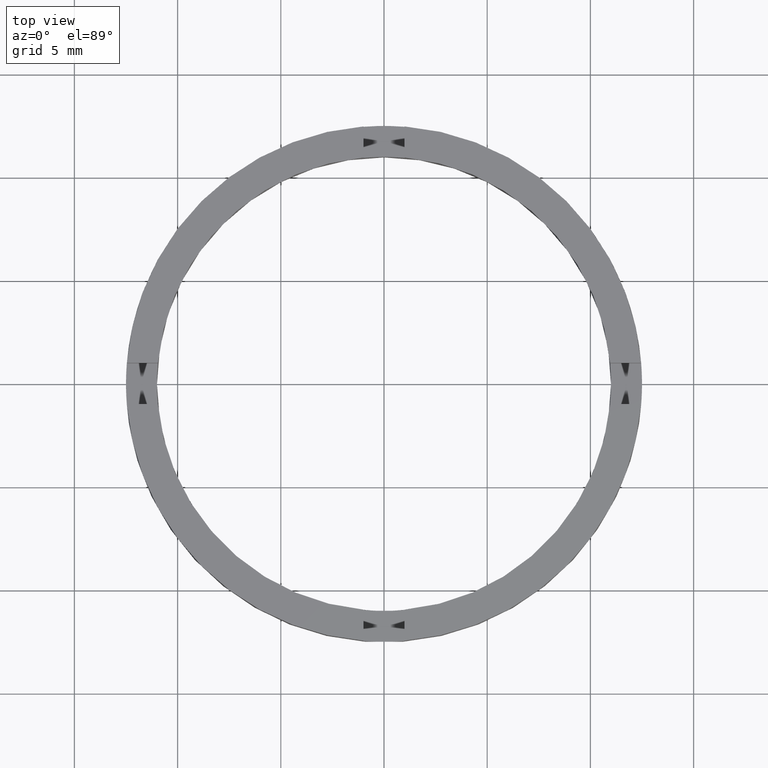
[diagram: clean part render]
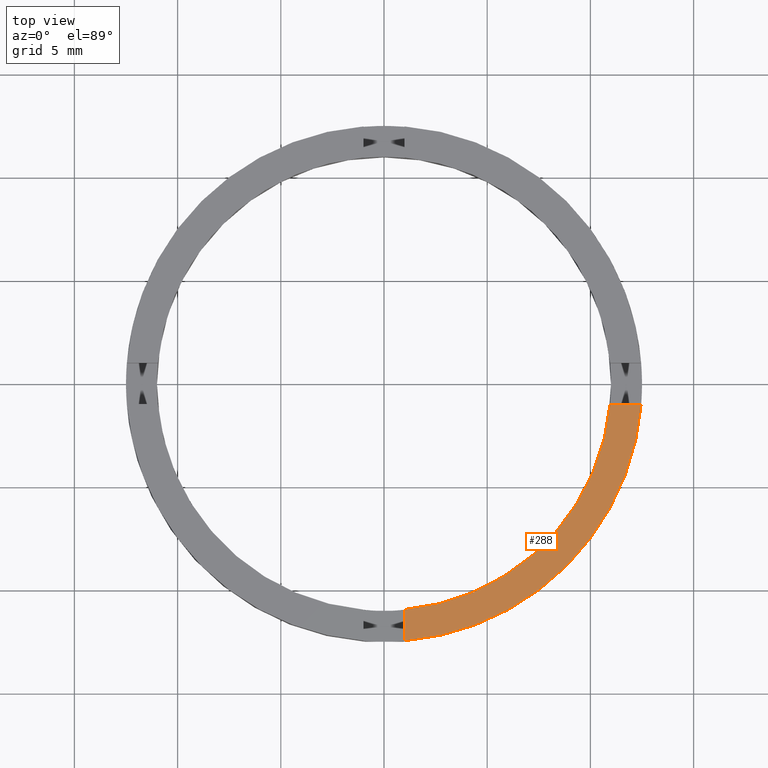
[diagram: same view with one face highlighted and labeled with its STEP entity id]
A machine part, top view. The second image highlights one B-rep face of the part: STEP entity #288.
In plain terms, the highlighted planar face has unit normal (0, 0, 1).
Its self-contained STEP definition (entity closure, byte-faithful):
#29 = DIRECTION ( 'NONE',  ( 1.000000000000000000, 0.000000000000000000, 0.000000000000000000 ) ) ;
#49 = AXIS2_PLACEMENT_3D ( 'NONE', #605, #762, #29 ) ;
#100 = ORIENTED_EDGE ( 'NONE', *, *, #430, .F. ) ;
#173 = FACE_OUTER_BOUND ( 'NONE', #469, .T. ) ;
#190 = DIRECTION ( 'NONE',  ( 0.000000000000000000, 0.000000000000000000, 1.000000000000000000 ) ) ;
#194 = LINE ( 'NONE', #271, #712 ) ;
#220 = CARTESIAN_POINT ( 'NONE',  ( 0.9999999999998363531, -10.95445115010333659, 2.500000000000000000 ) ) ;
#226 = VERTEX_POINT ( 'NONE', #220 ) ;
#229 = ORIENTED_EDGE ( 'NONE', *, *, #279, .T. ) ;
#256 = CARTESIAN_POINT ( 'NONE',  ( 12.45993579437710075, -1.000000000000159872, 2.500000000000000000 ) ) ;
#268 = PLANE ( 'NONE',  #366 ) ;
#271 = CARTESIAN_POINT ( 'NONE',  ( 0.9999999999998352429, -2.500000000000182521, 2.500000000000000000 ) ) ;
#279 = EDGE_CURVE ( 'NONE', #623, #507, #691, .T. ) ;
#288 = ADVANCED_FACE ( 'NONE', ( #173 ), #268, .T. ) ;
#304 = CARTESIAN_POINT ( 'NONE',  ( 10.95445115010330639, -1.000000000000159872, 2.500000000000000000 ) ) ;
#306 = EDGE_CURVE ( 'NONE', #512, #507, #697, .T. ) ;
#344 = CARTESIAN_POINT ( 'NONE',  ( 0.000000000000000000, 0.000000000000000000, 2.500000000000000000 ) ) ;
#346 = DIRECTION ( 'NONE',  ( 1.000000000000000000, 0.000000000000000000, 0.000000000000000000 ) ) ;
#349 = CARTESIAN_POINT ( 'NONE',  ( 2.499999999999998668, -1.000000000000160316, 2.500000000000000000 ) ) ;
#352 = EDGE_CURVE ( 'NONE', #623, #226, #194, .T. ) ;
#357 = CIRCLE ( 'NONE', #49, 11.00000000000000000 ) ;
#366 = AXIS2_PLACEMENT_3D ( 'NONE', #595, #671, #665 ) ;
#372 = ORIENTED_EDGE ( 'NONE', *, *, #306, .F. ) ;
#430 = EDGE_CURVE ( 'NONE', #226, #512, #357, .T. ) ;
#469 = EDGE_LOOP ( 'NONE', ( #372, #100, #771, #229 ) ) ;
#471 = VECTOR ( 'NONE', #564, 1000.000000000000000 ) ;
#507 = VERTEX_POINT ( 'NONE', #256 ) ;
#512 = VERTEX_POINT ( 'NONE', #304 ) ;
#530 = DIRECTION ( 'NONE',  ( -1.301042606982605567E-16, 1.000000000000000000, -0.000000000000000000 ) ) ;
#564 = DIRECTION ( 'NONE',  ( 1.000000000000000000, 4.336808689942018352E-17, 0.000000000000000000 ) ) ;
#595 = CARTESIAN_POINT ( 'NONE',  ( 0.000000000000000000, 0.000000000000000000, 2.500000000000000000 ) ) ;
#605 = CARTESIAN_POINT ( 'NONE',  ( 0.000000000000000000, 0.000000000000000000, 2.500000000000000000 ) ) ;
#616 = CARTESIAN_POINT ( 'NONE',  ( 0.9999999999998363531, -12.45993579437712739, 2.500000000000000000 ) ) ;
#623 = VERTEX_POINT ( 'NONE', #616 ) ;
#665 = DIRECTION ( 'NONE',  ( 1.000000000000000000, 0.000000000000000000, -0.000000000000000000 ) ) ;
#671 = DIRECTION ( 'NONE',  ( 0.000000000000000000, 0.000000000000000000, 1.000000000000000000 ) ) ;
#691 = CIRCLE ( 'NONE', #724, 12.50000000000000000 ) ;
#697 = LINE ( 'NONE', #349, #471 ) ;
#712 = VECTOR ( 'NONE', #530, 1000.000000000000000 ) ;
#724 = AXIS2_PLACEMENT_3D ( 'NONE', #344, #190, #346 ) ;
#762 = DIRECTION ( 'NONE',  ( 0.000000000000000000, 0.000000000000000000, 1.000000000000000000 ) ) ;
#771 = ORIENTED_EDGE ( 'NONE', *, *, #352, .F. ) ;